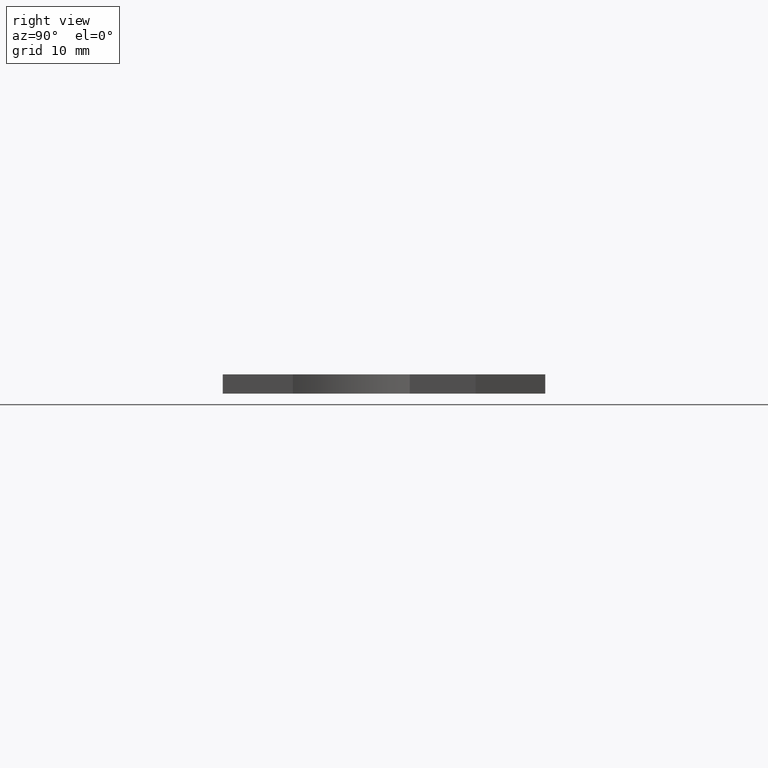
[diagram: clean part render]
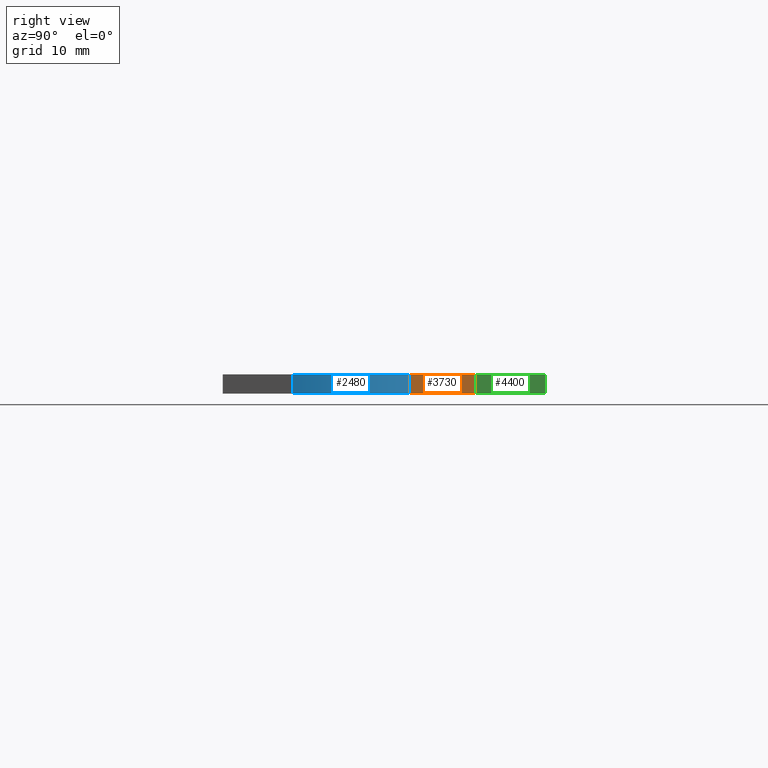
[diagram: same view with three faces highlighted in distinct colors, each labeled with its STEP entity id]
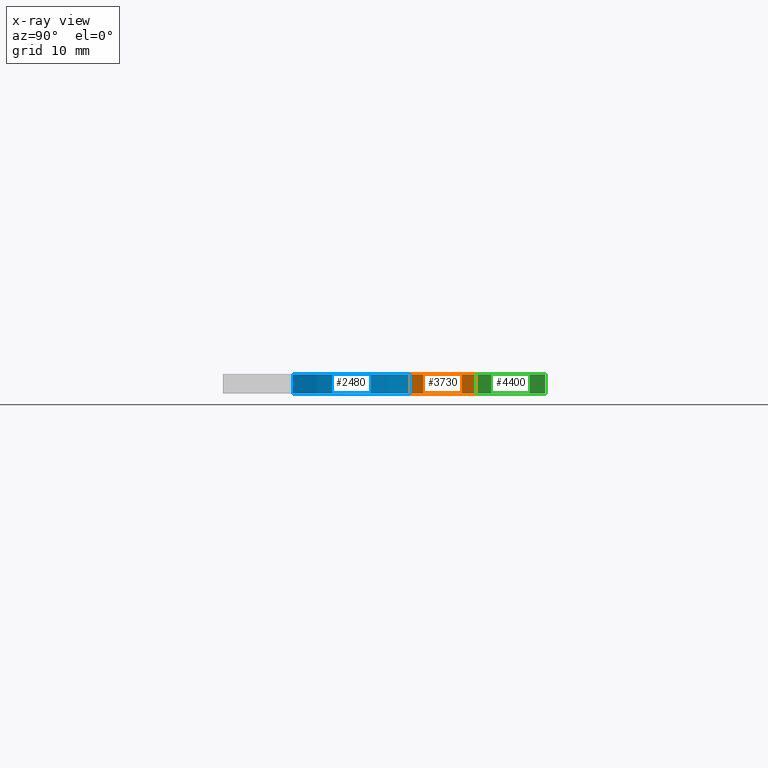
[diagram: x-ray of the same camera — body ghosted, the three highlighted faces saturated]
A machine part, right view with three faces highlighted in distinct colors.
The next image is the same camera in x-ray (body ghosted, the three faces saturated) — at least one of them is partly hidden behind the body in this view.
Their STEP definitions:

[orange] entity #3730 — the highlighted planar face has unit normal (1, 0, 0).
#370=CARTESIAN_POINT('',(75.8735428960719,-86.8804951726465,
-8.09999999999508));
#380=VERTEX_POINT('',#370);
#410=CARTESIAN_POINT('',(75.8735428960987,0.,-8.09999999991984));
#420=DIRECTION('',(3.09058334478859E-13,1.,8.6594678495278E-13));
#430=VECTOR('',#420,1.);
#440=LINE('',#410,#430);
#450=CARTESIAN_POINT('',(75.8735428960695,-94.3980751947144,
-8.10000000000158));
#460=VERTEX_POINT('',#450);
#470=EDGE_CURVE('',#460,#380,#440,.T.);
#1740=CARTESIAN_POINT('',(75.8735428960757,-94.3980751947125,
-10.2999999999135));
#1750=VERTEX_POINT('',#1740);
#1780=CARTESIAN_POINT('',(75.8735428961049,0.,-10.2999999999385));
#1790=DIRECTION('',(3.09058334482062E-13,1.,-2.65115463621008E-13));
#1800=VECTOR('',#1790,1.);
#1810=LINE('',#1780,#1800);
#1820=CARTESIAN_POINT('',(75.8735428960781,-86.8804951726446,
-10.2999999999155));
#1830=VERTEX_POINT('',#1820);
#1840=EDGE_CURVE('',#1750,#1830,#1810,.T.);
#2390=CARTESIAN_POINT('',(75.8735428960719,-86.8804951726465,
-8.09999999999508));
#2400=DIRECTION('',(-2.83162617508304E-12,-8.65946784951905E-13,1.));
#2410=VECTOR('',#2400,1.);
#2420=LINE('',#2390,#2410);
#2430=EDGE_CURVE('',#1830,#380,#2420,.T.);
#3570=CARTESIAN_POINT('',(75.8735428960695,-94.3980751947146,
-8.10000000000159));
#3580=DIRECTION('',(1.,-3.09058334481311E-13,2.83162617508277E-12));
#3590=DIRECTION('',(-3.09058334478859E-13,-1.,-8.6594678495278E-13));
#3600=AXIS2_PLACEMENT_3D('',#3570,#3580,#3590);
#3610=PLANE('',#3600);
#3620=ORIENTED_EDGE('',*,*,#2430,.T.);
#3630=ORIENTED_EDGE('',*,*,#1840,.T.);
#3640=CARTESIAN_POINT('',(75.8735428960466,-94.3980751947215,0.));
#3650=DIRECTION('',(2.83162617508304E-12,8.65946784951904E-13,-1.));
#3660=VECTOR('',#3650,1.);
#3670=LINE('',#3640,#3660);
#3680=EDGE_CURVE('',#460,#1750,#3670,.T.);
#3690=ORIENTED_EDGE('',*,*,#3680,.T.);
#3700=ORIENTED_EDGE('',*,*,#470,.F.);
#3710=EDGE_LOOP('',(#3700,#3690,#3630,#3620));
#3720=FACE_OUTER_BOUND('',#3710,.T.);
#3730=ADVANCED_FACE('',(#3720),#3610,.T.);

[blue] entity #2480 — the highlighted cylindrical surface (partial cylindrical patch) has radius 15 mm, axis along (0, 0, -1).
#280=CARTESIAN_POINT('',(73.6828428310852,-73.5405475856063,
-8.09999999998973));
#290=VERTEX_POINT('',#280);
#320=CARTESIAN_POINT('',(87.9919308523366,-78.0405475856153,
-8.09999999995311));
#330=DIRECTION('',(-2.83162617508304E-12,-8.65946784951905E-13,1.));
#340=DIRECTION('',(-1.,3.09030578906421E-13,-2.83162617508277E-12));
#350=AXIS2_PLACEMENT_3D('',#320,#330,#340);
#360=CIRCLE('',#350,15.);
#370=CARTESIAN_POINT('',(75.8735428960719,-86.8804951726465,
-8.09999999999508));
#380=VERTEX_POINT('',#370);
#390=EDGE_CURVE('',#290,#380,#360,.T.);
#1820=CARTESIAN_POINT('',(75.8735428960781,-86.8804951726446,
-10.2999999999155));
#1830=VERTEX_POINT('',#1820);
#1860=CARTESIAN_POINT('',(87.9919308523428,-78.0405475856134,
-10.2999999998982));
#1870=DIRECTION('',(-2.83162617508304E-12,-8.65946784951905E-13,1.));
#1880=DIRECTION('',(-1.,3.09030578906421E-13,-2.83162617508277E-12));
#1890=AXIS2_PLACEMENT_3D('',#1860,#1870,#1880);
#1900=CIRCLE('',#1890,15.);
#1910=CARTESIAN_POINT('',(73.6828428310914,-73.5405475856044,
-10.2999999999348));
#1920=VERTEX_POINT('',#1910);
#1930=EDGE_CURVE('',#1920,#1830,#1900,.T.);
#2270=CARTESIAN_POINT('',(87.9919308523366,-78.0405475856153,
-8.09999999995311));
#2280=DIRECTION('',(-2.83162617508304E-12,-8.65946784951905E-13,1.));
#2290=DIRECTION('',(-1.,3.09030578906421E-13,-2.83162617508277E-12));
#2300=AXIS2_PLACEMENT_3D('',#2270,#2280,#2290);
#2310=CYLINDRICAL_SURFACE('',#2300,15.);
#2320=CARTESIAN_POINT('',(73.6828428310852,-73.5405475856063,
-8.09999999998973));
#2330=DIRECTION('',(-2.83162617508304E-12,-8.65946784951905E-13,1.));
#2340=VECTOR('',#2330,1.);
#2350=LINE('',#2320,#2340);
#2360=EDGE_CURVE('',#1920,#290,#2350,.T.);
#2370=ORIENTED_EDGE('',*,*,#2360,.T.);
#2380=ORIENTED_EDGE('',*,*,#1930,.F.);
#2390=CARTESIAN_POINT('',(75.8735428960719,-86.8804951726465,
-8.09999999999508));
#2400=DIRECTION('',(-2.83162617508304E-12,-8.65946784951905E-13,1.));
#2410=VECTOR('',#2400,1.);
#2420=LINE('',#2390,#2410);
#2430=EDGE_CURVE('',#1830,#380,#2420,.T.);
#2440=ORIENTED_EDGE('',*,*,#2430,.F.);
#2450=ORIENTED_EDGE('',*,*,#390,.T.);
#2460=EDGE_LOOP('',(#2450,#2440,#2380,#2370));
#2470=FACE_OUTER_BOUND('',#2460,.T.);
#2480=ADVANCED_FACE('',(#2470),#2310,.F.);

[green] entity #4400 — the highlighted planar face has unit normal (0.9903, 0.1392, 0).
#450=CARTESIAN_POINT('',(75.8735428960695,-94.3980751947144,
-8.10000000000158));
#460=VERTEX_POINT('',#450);
#490=CARTESIAN_POINT('',(89.1403271958198,0.,-8.09999999988227));
#500=DIRECTION('',(0.139173101140975,0.990268068716145,
1.25159604902336E-12));
#510=VECTOR('',#500,1.);
#520=LINE('',#490,#510);
#530=CARTESIAN_POINT('',(74.7573011951507,-102.340547585767,
-8.10000000001162));
#540=VERTEX_POINT('',#530);
#550=EDGE_CURVE('',#540,#460,#520,.T.);
#1660=CARTESIAN_POINT('',(74.7573011951569,-102.340547585765,
-10.2999999999132));
#1670=VERTEX_POINT('',#1660);
#1700=CARTESIAN_POINT('',(89.1403271958257,0.,-10.299999999917));
#1710=DIRECTION('',(0.139173101140975,0.990268068716145,
-3.67622599029005E-14));
#1720=VECTOR('',#1710,1.);
#1730=LINE('',#1700,#1720);
#1740=CARTESIAN_POINT('',(75.8735428960757,-94.3980751947125,
-10.2999999999135));
#1750=VERTEX_POINT('',#1740);
#1760=EDGE_CURVE('',#1670,#1750,#1730,.T.);
#2610=CARTESIAN_POINT('',(74.7573011951277,-102.340547585774,0.));
#2620=DIRECTION('',(-2.83162617508304E-12,-8.65946784951905E-13,1.));
#2630=VECTOR('',#2620,1.);
#2640=LINE('',#2610,#2630);
#2650=EDGE_CURVE('',#1670,#540,#2640,.T.);
#3640=CARTESIAN_POINT('',(75.8735428960466,-94.3980751947215,0.));
#3650=DIRECTION('',(2.83162617508304E-12,8.65946784951904E-13,-1.));
#3660=VECTOR('',#3650,1.);
#3670=LINE('',#3640,#3660);
#3680=EDGE_CURVE('',#460,#1750,#3670,.T.);
#4290=CARTESIAN_POINT('',(74.817791860707,-101.910134136151,
-8.10000000001108));
#4300=DIRECTION('',(0.990268068716145,-0.139173101140975,
2.68355248424075E-12));
#4310=DIRECTION('',(-0.139173101140975,-0.990268068716145,
-1.25160564640354E-12));
#4320=AXIS2_PLACEMENT_3D('',#4290,#4300,#4310);
#4330=PLANE('',#4320);
#4340=ORIENTED_EDGE('',*,*,#550,.F.);
#4350=ORIENTED_EDGE('',*,*,#3680,.F.);
#4360=ORIENTED_EDGE('',*,*,#1760,.T.);
#4370=ORIENTED_EDGE('',*,*,#2650,.F.);
#4380=EDGE_LOOP('',(#4370,#4360,#4350,#4340));
#4390=FACE_OUTER_BOUND('',#4380,.T.);
#4400=ADVANCED_FACE('',(#4390),#4330,.T.);